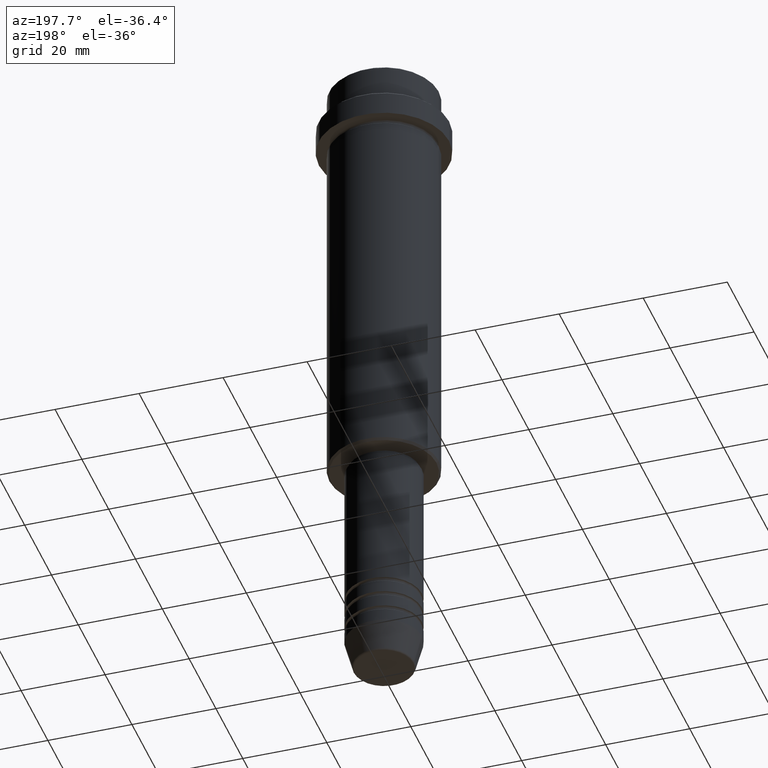
[diagram: clean part render]
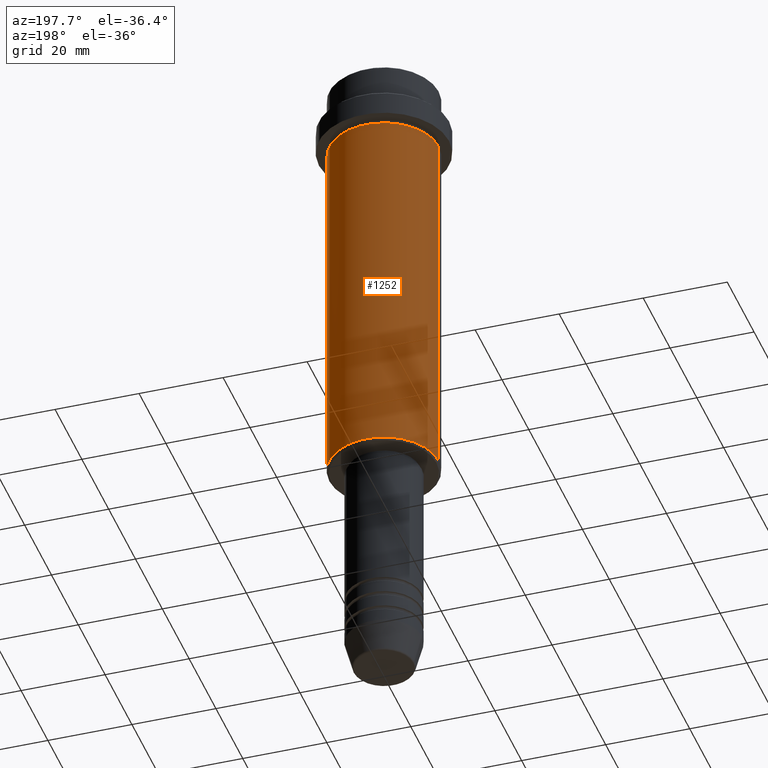
[diagram: same view with one face highlighted and labeled with its STEP entity id]
A machine part, auxiliary view. The second image highlights one B-rep face of the part: STEP entity #1252.
In plain terms, the highlighted cylindrical surface (partial cylindrical patch) has radius 13 mm, axis along (-0, -0, 1).
Its self-contained STEP definition (entity closure, byte-faithful):
#8 = DIRECTION ( 'NONE',  ( -0.000000000000000000, -0.000000000000000000, 1.000000000000000000 ) ) ;
#18 = EDGE_CURVE ( 'NONE', #417, #867, #825, .T. ) ;
#31 = ORIENTED_EDGE ( 'NONE', *, *, #285, .F. ) ;
#75 = DIRECTION ( 'NONE',  ( -1.000000000000000000, 0.000000000000000000, 0.000000000000000000 ) ) ;
#93 = VERTEX_POINT ( 'NONE', #1021 ) ;
#144 = CARTESIAN_POINT ( 'NONE',  ( -13.00000000000000000, 1.592040838891559095E-15, -16.00000000000000000 ) ) ;
#153 = VECTOR ( 'NONE', #509, 1000.000000000000000 ) ;
#177 = CARTESIAN_POINT ( 'NONE',  ( 0.000000000000000000, 0.000000000000000000, -104.5000000000000284 ) ) ;
#184 = DIRECTION ( 'NONE',  ( -0.000000000000000000, -0.000000000000000000, 1.000000000000000000 ) ) ;
#222 = ORIENTED_EDGE ( 'NONE', *, *, #18, .T. ) ;
#281 = ORIENTED_EDGE ( 'NONE', *, *, #1048, .T. ) ;
#285 = EDGE_CURVE ( 'NONE', #93, #867, #1331, .T. ) ;
#417 = VERTEX_POINT ( 'NONE', #804 ) ;
#444 = DIRECTION ( 'NONE',  ( 1.000000000000000000, 0.000000000000000000, 0.000000000000000000 ) ) ;
#509 = DIRECTION ( 'NONE',  ( -0.000000000000000000, -0.000000000000000000, 1.000000000000000000 ) ) ;
#561 = CARTESIAN_POINT ( 'NONE',  ( 0.000000000000000000, 0.000000000000000000, 0.000000000000000000 ) ) ;
#679 = DIRECTION ( 'NONE',  ( 1.000000000000000000, 0.000000000000000000, 0.000000000000000000 ) ) ;
#684 = EDGE_LOOP ( 'NONE', ( #281, #222, #31, #1304 ) ) ;
#707 = AXIS2_PLACEMENT_3D ( 'NONE', #177, #184, #75 ) ;
#726 = AXIS2_PLACEMENT_3D ( 'NONE', #1014, #893, #679 ) ;
#804 = CARTESIAN_POINT ( 'NONE',  ( -13.00000000000000000, 1.592040838891559095E-15, -104.5000000000000284 ) ) ;
#825 = LINE ( 'NONE', #1227, #153 ) ;
#858 = DIRECTION ( 'NONE',  ( -0.000000000000000000, -0.000000000000000000, 1.000000000000000000 ) ) ;
#867 = VERTEX_POINT ( 'NONE', #144 ) ;
#879 = VECTOR ( 'NONE', #858, 1000.000000000000000 ) ;
#893 = DIRECTION ( 'NONE',  ( -0.000000000000000000, -0.000000000000000000, 1.000000000000000000 ) ) ;
#974 = LINE ( 'NONE', #1066, #879 ) ;
#986 = FACE_OUTER_BOUND ( 'NONE', #684, .T. ) ;
#1014 = CARTESIAN_POINT ( 'NONE',  ( 0.000000000000000000, 0.000000000000000000, -16.00000000000000000 ) ) ;
#1021 = CARTESIAN_POINT ( 'NONE',  ( 13.00000000000000000, 0.000000000000000000, -16.00000000000000000 ) ) ;
#1048 = EDGE_CURVE ( 'NONE', #1171, #417, #1313, .T. ) ;
#1066 = CARTESIAN_POINT ( 'NONE',  ( 13.00000000000000000, 0.000000000000000000, 0.000000000000000000 ) ) ;
#1083 = EDGE_CURVE ( 'NONE', #1171, #93, #974, .T. ) ;
#1171 = VERTEX_POINT ( 'NONE', #1300 ) ;
#1213 = CYLINDRICAL_SURFACE ( 'NONE', #1314, 13.00000000000000000 ) ;
#1227 = CARTESIAN_POINT ( 'NONE',  ( -13.00000000000000000, 1.592040838891559095E-15, 0.000000000000000000 ) ) ;
#1252 = ADVANCED_FACE ( 'NONE', ( #986 ), #1213, .T. ) ;
#1300 = CARTESIAN_POINT ( 'NONE',  ( 13.00000000000000000, 0.000000000000000000, -104.5000000000000284 ) ) ;
#1304 = ORIENTED_EDGE ( 'NONE', *, *, #1083, .F. ) ;
#1313 = CIRCLE ( 'NONE', #707, 13.00000000000000000 ) ;
#1314 = AXIS2_PLACEMENT_3D ( 'NONE', #561, #8, #444 ) ;
#1331 = CIRCLE ( 'NONE', #726, 13.00000000000000000 ) ;